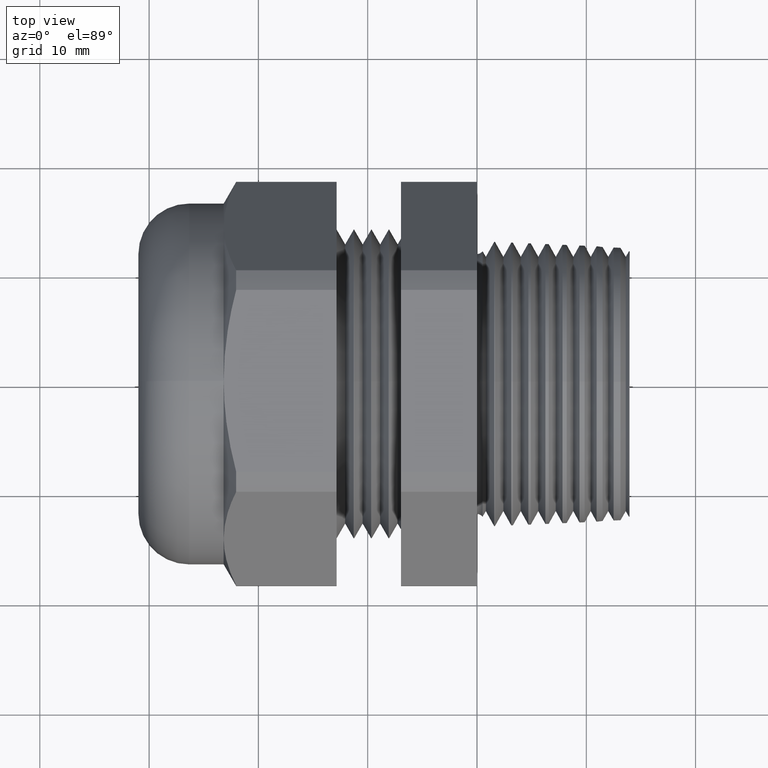
[diagram: clean part render]
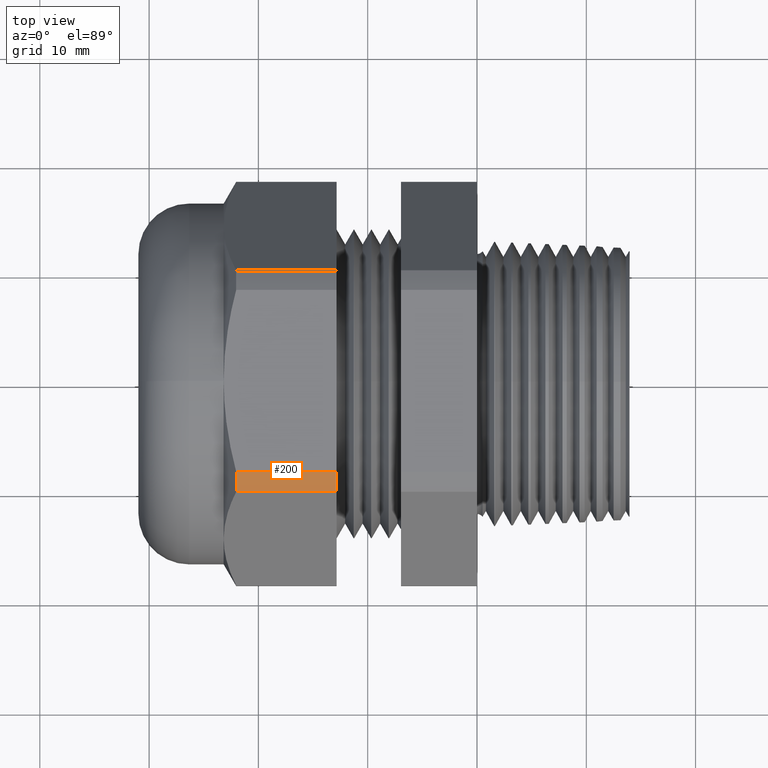
[diagram: same view with one face highlighted and labeled with its STEP entity id]
A machine part, top view. The second image highlights one B-rep face of the part: STEP entity #200.
In plain terms, the highlighted cylindrical surface (partial cylindrical patch) has radius 18.4912 mm, axis along (-1, 0, 0).
Its self-contained STEP definition (entity closure, byte-faithful):
#200 = ADVANCED_FACE ( 'NONE', ( #1724 ), #1722, .T. ) ;
#201 = EDGE_LOOP ( 'NONE', ( #202, #206, #209, #212 ) ) ;
#202 = ORIENTED_EDGE ( 'NONE', *, *, #203, .F. ) ;
#203 = EDGE_CURVE ( 'NONE', #204, #205, #1777, .T. ) ;
#204 = VERTEX_POINT ( 'NONE', #1770 ) ;
#205 = VERTEX_POINT ( 'NONE', #1769 ) ;
#206 = ORIENTED_EDGE ( 'NONE', *, *, #207, .T. ) ;
#207 = EDGE_CURVE ( 'NONE', #204, #208, #1768, .T. ) ;
#208 = VERTEX_POINT ( 'NONE', #1764 ) ;
#209 = ORIENTED_EDGE ( 'NONE', *, *, #210, .T. ) ;
#210 = EDGE_CURVE ( 'NONE', #208, #211, #1763, .T. ) ;
#211 = VERTEX_POINT ( 'NONE', #1758 ) ;
#212 = ORIENTED_EDGE ( 'NONE', *, *, #213, .F. ) ;
#213 = EDGE_CURVE ( 'NONE', #205, #211, #1757, .T. ) ;
#1722 = CYLINDRICAL_SURFACE ( 'NONE', #1723, 0.7280000000000003100 ) ;
#1723 = AXIS2_PLACEMENT_3D ( 'NONE', #1726, #1776, #1775 ) ;
#1724 = FACE_OUTER_BOUND ( 'NONE', #201, .T. ) ;
#1726 = CARTESIAN_POINT ( 'NONE',  ( -0.7238591030180623300, 0.0000000000000000000, 0.0000000000000000000 ) ) ;
#1754 = DIRECTION ( 'NONE',  ( 1.000000000000000000, 0.0000000000000000000, 0.0000000000000000000 ) ) ;
#1755 = VECTOR ( 'NONE', #1754, 39.37007874015748100 ) ;
#1756 = CARTESIAN_POINT ( 'NONE',  ( -2.992185896283379600, -0.3278475255358810900, 0.6500000000000000200 ) ) ;
#1757 = LINE ( 'NONE', #1756, #1755 ) ;
#1758 = CARTESIAN_POINT ( 'NONE',  ( -0.5058333333333331300, -0.3278475255358810900, 0.6500000000000000200 ) ) ;
#1759 = DIRECTION ( 'NONE',  ( 0.0000000000000000000, 0.0000000000000000000, 1.000000000000000000 ) ) ;
#1760 = DIRECTION ( 'NONE',  ( -1.000000000000000000, 0.0000000000000000000, 0.0000000000000000000 ) ) ;
#1761 = CARTESIAN_POINT ( 'NONE',  ( -0.5058333333333333600, 0.0000000000000000000, 0.0000000000000000000 ) ) ;
#1762 = AXIS2_PLACEMENT_3D ( 'NONE', #1761, #1760, #1759 ) ;
#1763 = CIRCLE ( 'NONE', #1762, 0.7280000000000003100 ) ;
#1764 = CARTESIAN_POINT ( 'NONE',  ( -0.5058333333333331300, -0.3989927496919443200, 0.6089242856819405700 ) ) ;
#1765 = DIRECTION ( 'NONE',  ( 1.000000000000000000, 0.0000000000000000000, 0.0000000000000000000 ) ) ;
#1766 = VECTOR ( 'NONE', #1765, 39.37007874015748100 ) ;
#1767 = CARTESIAN_POINT ( 'NONE',  ( -2.992185896283379600, -0.3989927496919443200, 0.6089242856819405700 ) ) ;
#1768 = LINE ( 'NONE', #1767, #1766 ) ;
#1769 = CARTESIAN_POINT ( 'NONE',  ( -0.8674666790032092800, -0.3278475255358811500, 0.6500000000000001300 ) ) ;
#1770 = CARTESIAN_POINT ( 'NONE',  ( -0.8674666790032094000, -0.3989927496919444300, 0.6089242856819406800 ) ) ;
#1771 = DIRECTION ( 'NONE',  ( 0.0000000000000000000, 1.065814103640150100E-014, -1.000000000000000000 ) ) ;
#1772 = DIRECTION ( 'NONE',  ( -1.000000000000000000, 0.0000000000000000000, 0.0000000000000000000 ) ) ;
#1773 = CARTESIAN_POINT ( 'NONE',  ( -0.8674666790032092800, 0.0000000000000000000, 0.0000000000000000000 ) ) ;
#1774 = AXIS2_PLACEMENT_3D ( 'NONE', #1773, #1772, #1771 ) ;
#1775 = DIRECTION ( 'NONE',  ( 0.0000000000000000000, 0.0000000000000000000, 1.000000000000000000 ) ) ;
#1776 = DIRECTION ( 'NONE',  ( -1.000000000000000000, 0.0000000000000000000, 0.0000000000000000000 ) ) ;
#1777 = CIRCLE ( 'NONE', #1774, 0.7280000000000003100 ) ;